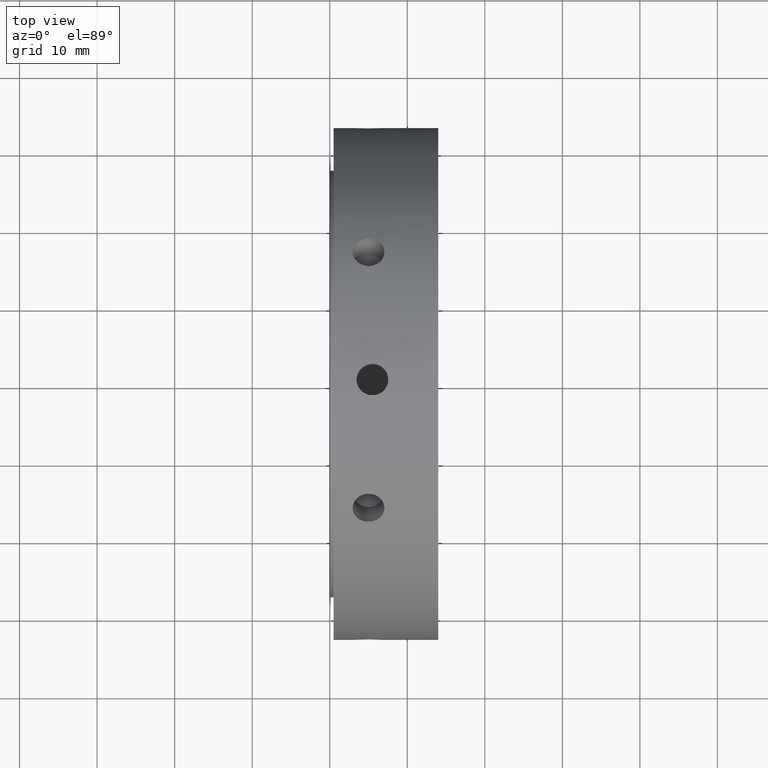
[diagram: clean part render]
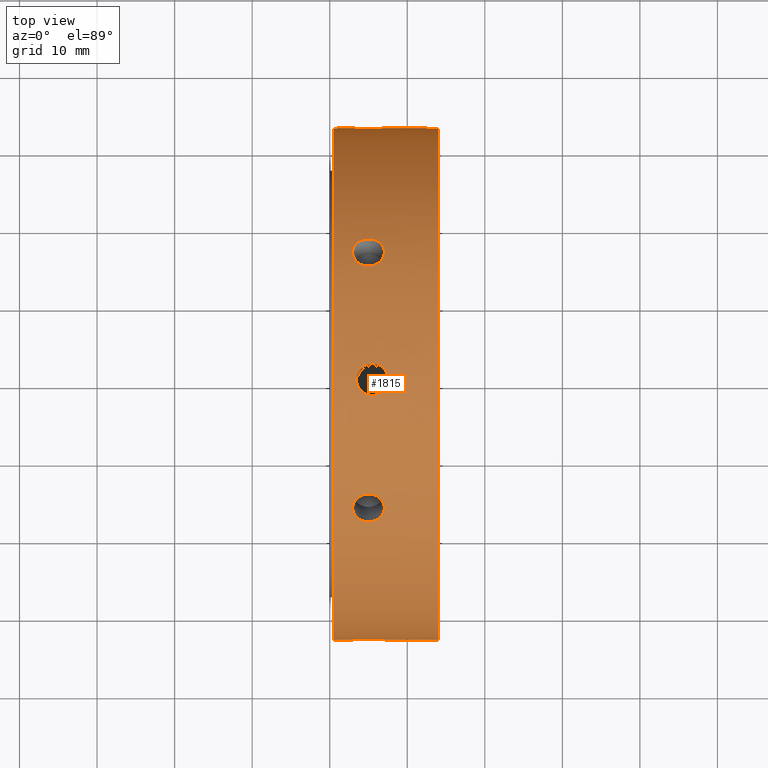
[diagram: same view with one face highlighted and labeled with its STEP entity id]
A machine part, top view. The second image highlights one B-rep face of the part: STEP entity #1815.
In plain terms, the highlighted cylindrical surface (bore or boss wall) has radius 33 mm, axis along (1, 0, 0).
Its self-contained STEP definition (entity closure, byte-faithful):
#534=CARTESIAN_POINT('',(2.949999999999995,16.500000000000025,28.578838324886458));
#535=VERTEX_POINT('',#534);
#536=CARTESIAN_POINT('',(7.049999999999994,16.500000000000025,28.578838324886458));
#537=VERTEX_POINT('',#536);
#538=CARTESIAN_POINT('',(2.949999999999995,16.500000000000021,28.578838324886458));
#539=CARTESIAN_POINT('',(2.949999999999995,16.722978702038088,28.450101511241229));
#540=CARTESIAN_POINT('',(3.001469730550207,16.959119575912077,28.309928827328811));
#541=CARTESIAN_POINT('',(3.210700403785936,17.390507037734277,28.046997557127945));
#542=CARTESIAN_POINT('',(3.368457679643568,17.585844216465336,27.924384711892365));
#543=CARTESIAN_POINT('',(3.732404609203521,17.893030353639261,27.728552849738524));
#544=CARTESIAN_POINT('',(3.962877949748982,18.025389885955832,27.642291872783559));
#545=CARTESIAN_POINT('',(4.467935952420571,18.200574987794123,27.527260137050931));
#546=CARTESIAN_POINT('',(4.742526242946584,18.243484181916145,27.498641510157835));
#547=CARTESIAN_POINT('',(5.257473757053406,18.243484181916145,27.498641510157835));
#548=CARTESIAN_POINT('',(5.532064047579422,18.200574987794123,27.527260137050938));
#549=CARTESIAN_POINT('',(6.037122050251011,18.025389885955835,27.642291872783566));
#550=CARTESIAN_POINT('',(6.267595390796467,17.893030353639261,27.72855284973852));
#551=CARTESIAN_POINT('',(6.63154232035642,17.585844216465336,27.924384711892365));
#552=CARTESIAN_POINT('',(6.789299596214051,17.390507037734281,28.046997557127938));
#553=CARTESIAN_POINT('',(6.99853026944978,16.95911957591208,28.309928827328807));
#554=CARTESIAN_POINT('',(7.049999999999994,16.722978702038091,28.450101511241229));
#555=CARTESIAN_POINT('',(7.049999999999994,16.500000000000025,28.578838324886458));
#556=B_SPLINE_CURVE_WITH_KNOTS('',3,(#538,#539,#540,#541,#542,#543,#544,#545,#546,#547,#548,#549,#550,#551,#552,#553,#554,#555),.UNSPECIFIED.,.F.,.U.,(4,2,2,2,2,2,2,2,4),(0.308968430606325,0.386210518793464,0.463452606980604,0.540694734096627,0.61793686121265,0.695178988328674,0.772421115444697,0.849663203631836,0.926905291818976),.UNSPECIFIED.);
#557=EDGE_CURVE('',#535,#537,#556,.T.);
#559=CARTESIAN_POINT('',(7.049999999999994,16.500000000000021,28.578838324886462));
#560=CARTESIAN_POINT('',(7.049999999999994,16.277021297961955,28.707575138531691));
#561=CARTESIAN_POINT('',(6.998530269449782,16.037557755840165,28.841992792222214));
#562=CARTESIAN_POINT('',(6.78929959621405,15.594158865485799,29.084119657933897));
#563=CARTESIAN_POINT('',(6.631542320356422,15.390304437315972,29.191980194400781));
#564=CARTESIAN_POINT('',(6.267595390796466,15.067116001233368,29.36009526180689));
#565=CARTESIAN_POINT('',(6.037122050251007,14.926232037676826,29.431591490748588));
#566=CARTESIAN_POINT('',(5.532064047579421,14.73901908137181,29.525790371438795));
#567=CARTESIAN_POINT('',(5.257473757053405,14.692780026399944,29.548641510157836));
#568=CARTESIAN_POINT('',(4.999999999999995,14.692780026399944,29.548641510157836));
#569=CARTESIAN_POINT('',(4.742526242946584,14.692780026399944,29.548641510157836));
#570=CARTESIAN_POINT('',(4.467935952420571,14.73901908137181,29.525790371438802));
#571=CARTESIAN_POINT('',(3.962877949748983,14.926232037676826,29.431591490748591));
#572=CARTESIAN_POINT('',(3.732404609203521,15.067116001233368,29.36009526180689));
#573=CARTESIAN_POINT('',(3.368457679643568,15.390304437315972,29.191980194400781));
#574=CARTESIAN_POINT('',(3.210700403785938,15.594158865485799,29.08411965793389));
#575=CARTESIAN_POINT('',(3.001469730550207,16.037557755840165,28.841992792222207));
#576=CARTESIAN_POINT('',(2.949999999999995,16.277021297961959,28.707575138531688));
#577=CARTESIAN_POINT('',(2.949999999999995,16.500000000000025,28.578838324886458));
#578=B_SPLINE_CURVE_WITH_KNOTS('',3,(#559,#560,#561,#562,#563,#564,#565,#566,#567,#568,#569,#570,#571,#572,#573,#574,#575,#576,#577),.UNSPECIFIED.,.F.,.U.,(4,2,2,2,3,2,2,2,4),(0.926905291818976,1.004147380006115,1.081389468193254,1.158631595309278,1.235873722425301,1.313115849541324,1.390357976657347,1.467600064844487,1.544842153031626),.UNSPECIFIED.);
#579=EDGE_CURVE('',#537,#535,#578,.T.);
#646=CARTESIAN_POINT('',(2.949999999999995,32.999999999999993,-2.198242E-014));
#647=VERTEX_POINT('',#646);
#648=CARTESIAN_POINT('',(7.049999999999994,32.999999999999993,-1.332268E-014));
#649=VERTEX_POINT('',#648);
#650=CARTESIAN_POINT('',(2.949999999999995,33.0,-1.443290E-014));
#651=CARTESIAN_POINT('',(2.949999999999995,33.0,-0.257473627290479));
#652=CARTESIAN_POINT('',(3.001469730550208,32.996677331752188,-0.532063964893418));
#653=CARTESIAN_POINT('',(3.210700403785938,32.984665903220026,-1.037122100805969));
#654=CARTESIAN_POINT('',(3.368457679643568,32.976148653781252,-1.267595482508432));
#655=CARTESIAN_POINT('',(3.732404609203521,32.960146354872577,-1.631542412068386));
#656=CARTESIAN_POINT('',(3.962877949748983,32.951621923632615,-1.789299617965041));
#657=CARTESIAN_POINT('',(4.467935952420571,32.939594069165878,-1.998530234387874));
#658=CARTESIAN_POINT('',(4.742526242946584,32.936264208316032,-2.050000000000015));
#659=CARTESIAN_POINT('',(5.257473757053406,32.936264208316032,-2.050000000000015));
#660=CARTESIAN_POINT('',(5.532064047579421,32.939594069165878,-1.998530234387874));
#661=CARTESIAN_POINT('',(6.037122050251006,32.951621923632615,-1.789299617965042));
#662=CARTESIAN_POINT('',(6.267595390796467,32.960146354872577,-1.631542412068386));
#663=CARTESIAN_POINT('',(6.63154232035642,32.976148653781252,-1.267595482508432));
#664=CARTESIAN_POINT('',(6.78929959621405,32.984665903220026,-1.03712210080597));
#665=CARTESIAN_POINT('',(6.998530269449782,32.996677331752188,-0.532063964893418));
#666=CARTESIAN_POINT('',(7.049999999999994,33.0,-0.25747362729048));
#667=CARTESIAN_POINT('',(7.049999999999994,33.0,-1.512679E-014));
#668=B_SPLINE_CURVE_WITH_KNOTS('',3,(#650,#651,#652,#653,#654,#655,#656,#657,#658,#659,#660,#661,#662,#663,#664,#665,#666,#667),.UNSPECIFIED.,.F.,.U.,(4,2,2,2,2,2,2,2,4),(0.308968430606325,0.386210518793465,0.463452606980604,0.540694734096627,0.61793686121265,0.695178988328674,0.772421115444697,0.849663203631836,0.926905291818976),.UNSPECIFIED.);
#669=EDGE_CURVE('',#647,#649,#668,.T.);
#671=CARTESIAN_POINT('',(7.049999999999994,33.0,-1.477984E-014));
#672=CARTESIAN_POINT('',(7.049999999999994,33.0,0.25747362729045));
#673=CARTESIAN_POINT('',(6.998530269449782,32.996677331752188,0.532063964893388));
#674=CARTESIAN_POINT('',(6.789299596214051,32.984665903220026,1.03712210080594));
#675=CARTESIAN_POINT('',(6.631542320356422,32.976148653781252,1.267595482508402));
#676=CARTESIAN_POINT('',(6.267595390796467,32.960146354872577,1.631542412068356));
#677=CARTESIAN_POINT('',(6.037122050251005,32.951621923632615,1.789299617965013));
#678=CARTESIAN_POINT('',(5.532064047579417,32.939594069165878,1.998530234387845));
#679=CARTESIAN_POINT('',(5.257473757053405,32.93626420831604,2.049999999999985));
#680=CARTESIAN_POINT('',(4.999999999999995,32.93626420831604,2.049999999999985));
#681=CARTESIAN_POINT('',(4.742526242946584,32.93626420831604,2.049999999999985));
#682=CARTESIAN_POINT('',(4.46793595242057,32.939594069165878,1.998530234387845));
#683=CARTESIAN_POINT('',(3.962877949748983,32.951621923632615,1.789299617965012));
#684=CARTESIAN_POINT('',(3.732404609203521,32.960146354872577,1.631542412068357));
#685=CARTESIAN_POINT('',(3.368457679643568,32.976148653781252,1.267595482508403));
#686=CARTESIAN_POINT('',(3.210700403785939,32.984665903220026,1.03712210080594));
#687=CARTESIAN_POINT('',(3.001469730550208,32.996677331752188,0.532063964893389));
#688=CARTESIAN_POINT('',(2.949999999999995,33.0,0.25747362729045));
#689=CARTESIAN_POINT('',(2.949999999999995,33.0,-1.443290E-014));
#690=B_SPLINE_CURVE_WITH_KNOTS('',3,(#671,#672,#673,#674,#675,#676,#677,#678,#679,#680,#681,#682,#683,#684,#685,#686,#687,#688,#689),.UNSPECIFIED.,.F.,.U.,(4,2,2,2,3,2,2,2,4),(0.926905291818976,1.004147380006115,1.081389468193254,1.158631595309278,1.235873722425301,1.313115849541324,1.390357976657347,1.467600064844487,1.544842153031626),.UNSPECIFIED.);
#691=EDGE_CURVE('',#649,#647,#690,.T.);
#758=CARTESIAN_POINT('',(2.949999999999995,16.499999999999989,-28.578838324886476));
#759=VERTEX_POINT('',#758);
#760=CARTESIAN_POINT('',(7.049999999999994,16.499999999999993,-28.578838324886469));
#761=VERTEX_POINT('',#760);
#762=CARTESIAN_POINT('',(2.949999999999994,16.499999999999996,-28.578838324886476));
#763=CARTESIAN_POINT('',(2.949999999999994,16.277021297961927,-28.707575138531709));
#764=CARTESIAN_POINT('',(3.001469730550208,16.037557755840133,-28.841992792222225));
#765=CARTESIAN_POINT('',(3.210700403785938,15.59415886548577,-29.084119657933908));
#766=CARTESIAN_POINT('',(3.368457679643568,15.390304437315944,-29.191980194400795));
#767=CARTESIAN_POINT('',(3.732404609203521,15.067116001233337,-29.360095261806904));
#768=CARTESIAN_POINT('',(3.962877949748983,14.926232037676801,-29.431591490748605));
#769=CARTESIAN_POINT('',(4.467935952420571,14.739019081371785,-29.525790371438813));
#770=CARTESIAN_POINT('',(4.742526242946584,14.692780026399916,-29.54864151015785));
#771=CARTESIAN_POINT('',(5.257473757053405,14.692780026399916,-29.54864151015785));
#772=CARTESIAN_POINT('',(5.532064047579418,14.739019081371785,-29.525790371438809));
#773=CARTESIAN_POINT('',(6.037122050251005,14.926232037676799,-29.431591490748605));
#774=CARTESIAN_POINT('',(6.267595390796466,15.067116001233337,-29.360095261806904));
#775=CARTESIAN_POINT('',(6.63154232035642,15.390304437315944,-29.191980194400795));
#776=CARTESIAN_POINT('',(6.789299596214051,15.59415886548577,-29.084119657933904));
#777=CARTESIAN_POINT('',(6.998530269449782,16.037557755840133,-28.841992792222221));
#778=CARTESIAN_POINT('',(7.049999999999995,16.277021297961923,-28.707575138531709));
#779=CARTESIAN_POINT('',(7.049999999999995,16.499999999999993,-28.578838324886476));
#780=B_SPLINE_CURVE_WITH_KNOTS('',3,(#762,#763,#764,#765,#766,#767,#768,#769,#770,#771,#772,#773,#774,#775,#776,#777,#778,#779),.UNSPECIFIED.,.F.,.U.,(4,2,2,2,2,2,2,2,4),(0.308968430606325,0.386210518793465,0.463452606980604,0.540694734096627,0.61793686121265,0.695178988328673,0.772421115444697,0.849663203631836,0.926905291818975),.UNSPECIFIED.);
#781=EDGE_CURVE('',#759,#761,#780,.T.);
#783=CARTESIAN_POINT('',(7.049999999999994,16.499999999999996,-28.578838324886476));
#784=CARTESIAN_POINT('',(7.049999999999994,16.722978702038066,-28.450101511241243));
#785=CARTESIAN_POINT('',(6.99853026944978,16.959119575912048,-28.309928827328825));
#786=CARTESIAN_POINT('',(6.789299596214052,17.390507037734253,-28.046997557127959));
#787=CARTESIAN_POINT('',(6.631542320356422,17.585844216465311,-27.924384711892376));
#788=CARTESIAN_POINT('',(6.267595390796466,17.893030353639237,-27.728552849738534));
#789=CARTESIAN_POINT('',(6.037122050251004,18.025389885955807,-27.642291872783581));
#790=CARTESIAN_POINT('',(5.532064047579417,18.200574987794095,-27.527260137050952));
#791=CARTESIAN_POINT('',(5.257473757053405,18.243484181916116,-27.498641510157849));
#792=CARTESIAN_POINT('',(4.999999999999995,18.243484181916116,-27.498641510157849));
#793=CARTESIAN_POINT('',(4.742526242946584,18.243484181916116,-27.498641510157849));
#794=CARTESIAN_POINT('',(4.467935952420572,18.200574987794095,-27.527260137050952));
#795=CARTESIAN_POINT('',(3.962877949748985,18.025389885955807,-27.642291872783581));
#796=CARTESIAN_POINT('',(3.732404609203522,17.893030353639237,-27.728552849738534));
#797=CARTESIAN_POINT('',(3.368457679643568,17.585844216465311,-27.924384711892376));
#798=CARTESIAN_POINT('',(3.210700403785938,17.390507037734253,-28.046997557127959));
#799=CARTESIAN_POINT('',(3.001469730550209,16.959119575912048,-28.309928827328825));
#800=CARTESIAN_POINT('',(2.949999999999995,16.722978702038066,-28.450101511241243));
#801=CARTESIAN_POINT('',(2.949999999999995,16.5,-28.578838324886476));
#802=B_SPLINE_CURVE_WITH_KNOTS('',3,(#783,#784,#785,#786,#787,#788,#789,#790,#791,#792,#793,#794,#795,#796,#797,#798,#799,#800,#801),.UNSPECIFIED.,.F.,.U.,(4,2,2,2,3,2,2,2,4),(0.926905291818975,1.004147380006115,1.081389468193254,1.158631595309278,1.235873722425301,1.313115849541324,1.390357976657347,1.467600064844487,1.544842153031626),.UNSPECIFIED.);
#803=EDGE_CURVE('',#761,#759,#802,.T.);
#870=CARTESIAN_POINT('',(2.949999999999995,-16.500000000000011,-28.578838324886465));
#871=VERTEX_POINT('',#870);
#872=CARTESIAN_POINT('',(7.049999999999994,-16.500000000000007,-28.578838324886469));
#873=VERTEX_POINT('',#872);
#874=CARTESIAN_POINT('',(2.949999999999994,-16.500000000000004,-28.578838324886465));
#875=CARTESIAN_POINT('',(2.949999999999994,-16.72297870203807,-28.450101511241233));
#876=CARTESIAN_POINT('',(3.001469730550208,-16.959119575912059,-28.309928827328818));
#877=CARTESIAN_POINT('',(3.210700403785937,-17.390507037734256,-28.046997557127948));
#878=CARTESIAN_POINT('',(3.368457679643568,-17.585844216465315,-27.924384711892376));
#879=CARTESIAN_POINT('',(3.732404609203521,-17.89303035363924,-27.728552849738527));
#880=CARTESIAN_POINT('',(3.962877949748981,-18.025389885955814,-27.642291872783581));
#881=CARTESIAN_POINT('',(4.467935952420571,-18.200574987794102,-27.527260137050952));
#882=CARTESIAN_POINT('',(4.742526242946584,-18.243484181916124,-27.498641510157846));
#883=CARTESIAN_POINT('',(5.257473757053406,-18.243484181916124,-27.498641510157846));
#884=CARTESIAN_POINT('',(5.532064047579421,-18.200574987794102,-27.527260137050952));
#885=CARTESIAN_POINT('',(6.037122050251009,-18.025389885955814,-27.642291872783581));
#886=CARTESIAN_POINT('',(6.267595390796467,-17.89303035363924,-27.728552849738527));
#887=CARTESIAN_POINT('',(6.63154232035642,-17.585844216465315,-27.924384711892376));
#888=CARTESIAN_POINT('',(6.789299596214051,-17.390507037734263,-28.046997557127948));
#889=CARTESIAN_POINT('',(6.99853026944978,-16.959119575912062,-28.309928827328818));
#890=CARTESIAN_POINT('',(7.049999999999995,-16.72297870203807,-28.450101511241233));
#891=CARTESIAN_POINT('',(7.049999999999995,-16.500000000000004,-28.578838324886465));
#892=B_SPLINE_CURVE_WITH_KNOTS('',3,(#874,#875,#876,#877,#878,#879,#880,#881,#882,#883,#884,#885,#886,#887,#888,#889,#890,#891),.UNSPECIFIED.,.F.,.U.,(4,2,2,2,2,2,2,2,4),(0.308968430606325,0.386210518793464,0.463452606980604,0.540694734096627,0.61793686121265,0.695178988328673,0.772421115444697,0.849663203631836,0.926905291818975),.UNSPECIFIED.);
#893=EDGE_CURVE('',#871,#873,#892,.T.);
#895=CARTESIAN_POINT('',(7.049999999999994,-16.500000000000004,-28.578838324886469));
#896=CARTESIAN_POINT('',(7.049999999999994,-16.277021297961937,-28.707575138531706));
#897=CARTESIAN_POINT('',(6.998530269449782,-16.037557755840144,-28.841992792222225));
#898=CARTESIAN_POINT('',(6.789299596214052,-15.594158865485781,-29.084119657933908));
#899=CARTESIAN_POINT('',(6.631542320356423,-15.390304437315955,-29.191980194400784));
#900=CARTESIAN_POINT('',(6.26759539079647,-15.067116001233348,-29.360095261806897));
#901=CARTESIAN_POINT('',(6.037122050251012,-14.926232037676808,-29.431591490748595));
#902=CARTESIAN_POINT('',(5.532064047579423,-14.739019081371792,-29.525790371438809));
#903=CARTESIAN_POINT('',(5.257473757053406,-14.692780026399927,-29.548641510157843));
#904=CARTESIAN_POINT('',(4.999999999999995,-14.692780026399927,-29.548641510157843));
#905=CARTESIAN_POINT('',(4.742526242946584,-14.692780026399927,-29.548641510157843));
#906=CARTESIAN_POINT('',(4.467935952420569,-14.739019081371792,-29.525790371438809));
#907=CARTESIAN_POINT('',(3.962877949748981,-14.926232037676808,-29.431591490748595));
#908=CARTESIAN_POINT('',(3.73240460920352,-15.067116001233348,-29.360095261806897));
#909=CARTESIAN_POINT('',(3.368457679643568,-15.390304437315955,-29.191980194400784));
#910=CARTESIAN_POINT('',(3.210700403785938,-15.594158865485781,-29.084119657933908));
#911=CARTESIAN_POINT('',(3.001469730550208,-16.037557755840147,-28.841992792222225));
#912=CARTESIAN_POINT('',(2.949999999999994,-16.277021297961937,-28.707575138531706));
#913=CARTESIAN_POINT('',(2.949999999999994,-16.500000000000004,-28.578838324886469));
#914=B_SPLINE_CURVE_WITH_KNOTS('',3,(#895,#896,#897,#898,#899,#900,#901,#902,#903,#904,#905,#906,#907,#908,#909,#910,#911,#912,#913),.UNSPECIFIED.,.F.,.U.,(4,2,2,2,3,2,2,2,4),(0.926905291818975,1.004147380006115,1.081389468193254,1.158631595309277,1.2358737224253,1.313115849541324,1.390357976657347,1.467600064844486,1.544842153031625),.UNSPECIFIED.);
#915=EDGE_CURVE('',#873,#871,#914,.T.);
#982=CARTESIAN_POINT('',(2.949999999999995,-33.0,9.159340E-015));
#983=VERTEX_POINT('',#982);
#984=CARTESIAN_POINT('',(7.049999999999994,-33.0,2.220446E-015));
#985=VERTEX_POINT('',#984);
#986=CARTESIAN_POINT('',(2.949999999999995,-33.0,2.636780E-015));
#987=CARTESIAN_POINT('',(2.949999999999995,-33.0,0.257473627290467));
#988=CARTESIAN_POINT('',(3.001469730550207,-32.996677331752188,0.532063964893406));
#989=CARTESIAN_POINT('',(3.210700403785938,-32.984665903220026,1.037122100805958));
#990=CARTESIAN_POINT('',(3.368457679643568,-32.976148653781252,1.26759548250842));
#991=CARTESIAN_POINT('',(3.732404609203521,-32.960146354872577,1.631542412068374));
#992=CARTESIAN_POINT('',(3.962877949748983,-32.951621923632615,1.78929961796503));
#993=CARTESIAN_POINT('',(4.467935952420571,-32.939594069165878,1.998530234387862));
#994=CARTESIAN_POINT('',(4.742526242946584,-32.936264208316032,2.050000000000003));
#995=CARTESIAN_POINT('',(5.257473757053406,-32.936264208316032,2.050000000000003));
#996=CARTESIAN_POINT('',(5.53206404757942,-32.939594069165878,1.998530234387863));
#997=CARTESIAN_POINT('',(6.037122050251006,-32.951621923632615,1.78929961796503));
#998=CARTESIAN_POINT('',(6.267595390796467,-32.960146354872577,1.631542412068374));
#999=CARTESIAN_POINT('',(6.63154232035642,-32.976148653781252,1.267595482508421));
#1000=CARTESIAN_POINT('',(6.78929959621405,-32.984665903220026,1.037122100805958));
#1001=CARTESIAN_POINT('',(6.998530269449782,-32.996677331752188,0.532063964893406));
#1002=CARTESIAN_POINT('',(7.049999999999994,-33.0,0.257473627290468));
#1003=CARTESIAN_POINT('',(7.049999999999994,-33.0,3.261280E-015));
#1004=B_SPLINE_CURVE_WITH_KNOTS('',3,(#986,#987,#988,#989,#990,#991,#992,#993,#994,#995,#996,#997,#998,#999,#1000,#1001,#1002,#1003),.UNSPECIFIED.,.F.,.U.,(4,2,2,2,2,2,2,2,4),(0.308968430606325,0.386210518793465,0.463452606980604,0.540694734096627,0.61793686121265,0.695178988328674,0.772421115444697,0.849663203631836,0.926905291818976),.UNSPECIFIED.);
#1005=EDGE_CURVE('',#983,#985,#1004,.T.);
#1007=CARTESIAN_POINT('',(7.049999999999994,-33.0,2.983724E-015));
#1008=CARTESIAN_POINT('',(7.049999999999994,-33.0,-0.257473627290462));
#1009=CARTESIAN_POINT('',(6.998530269449782,-32.996677331752188,-0.5320639648934));
#1010=CARTESIAN_POINT('',(6.789299596214051,-32.984665903220026,-1.037122100805952));
#1011=CARTESIAN_POINT('',(6.631542320356422,-32.976148653781252,-1.267595482508414));
#1012=CARTESIAN_POINT('',(6.267595390796467,-32.960146354872577,-1.631542412068369));
#1013=CARTESIAN_POINT('',(6.037122050251005,-32.951621923632615,-1.789299617965025));
#1014=CARTESIAN_POINT('',(5.532064047579417,-32.939594069165878,-1.998530234387858));
#1015=CARTESIAN_POINT('',(5.257473757053405,-32.936264208316032,-2.049999999999997));
#1016=CARTESIAN_POINT('',(4.999999999999995,-32.936264208316032,-2.049999999999997));
#1017=CARTESIAN_POINT('',(4.742526242946584,-32.936264208316032,-2.049999999999997));
#1018=CARTESIAN_POINT('',(4.46793595242057,-32.939594069165885,-1.998530234387857));
#1019=CARTESIAN_POINT('',(3.962877949748983,-32.951621923632615,-1.789299617965024));
#1020=CARTESIAN_POINT('',(3.732404609203521,-32.960146354872577,-1.631542412068369));
#1021=CARTESIAN_POINT('',(3.368457679643568,-32.976148653781252,-1.267595482508415));
#1022=CARTESIAN_POINT('',(3.210700403785939,-32.984665903220026,-1.037122100805952));
#1023=CARTESIAN_POINT('',(3.001469730550208,-32.996677331752188,-0.532063964893401));
#1024=CARTESIAN_POINT('',(2.949999999999995,-33.0,-0.257473627290462));
#1025=CARTESIAN_POINT('',(2.949999999999995,-33.0,2.567391E-015));
#1026=B_SPLINE_CURVE_WITH_KNOTS('',3,(#1007,#1008,#1009,#1010,#1011,#1012,#1013,#1014,#1015,#1016,#1017,#1018,#1019,#1020,#1021,#1022,#1023,#1024,#1025),.UNSPECIFIED.,.F.,.U.,(4,2,2,2,3,2,2,2,4),(0.926905291818976,1.004147380006115,1.081389468193254,1.158631595309278,1.235873722425301,1.313115849541324,1.390357976657347,1.467600064844487,1.544842153031626),.UNSPECIFIED.);
#1027=EDGE_CURVE('',#985,#983,#1026,.T.);
#1131=CARTESIAN_POINT('',(2.949999999999995,-16.499999999999993,28.578838324886476));
#1132=VERTEX_POINT('',#1131);
#1133=CARTESIAN_POINT('',(7.049999999999994,-16.5,28.578838324886469));
#1134=VERTEX_POINT('',#1133);
#1135=CARTESIAN_POINT('',(2.949999999999995,-16.5,28.578838324886476));
#1136=CARTESIAN_POINT('',(2.949999999999995,-16.277021297961934,28.707575138531706));
#1137=CARTESIAN_POINT('',(3.001469730550207,-16.03755775584014,28.841992792222225));
#1138=CARTESIAN_POINT('',(3.210700403785938,-15.594158865485772,29.084119657933908));
#1139=CARTESIAN_POINT('',(3.368457679643568,-15.390304437315944,29.191980194400792));
#1140=CARTESIAN_POINT('',(3.732404609203521,-15.067116001233337,29.360095261806901));
#1141=CARTESIAN_POINT('',(3.962877949748983,-14.926232037676801,29.431591490748605));
#1142=CARTESIAN_POINT('',(4.467935952420571,-14.739019081371785,29.525790371438809));
#1143=CARTESIAN_POINT('',(4.742526242946584,-14.69278002639992,29.548641510157843));
#1144=CARTESIAN_POINT('',(5.257473757053406,-14.69278002639992,29.548641510157843));
#1145=CARTESIAN_POINT('',(5.532064047579421,-14.739019081371785,29.525790371438809));
#1146=CARTESIAN_POINT('',(6.037122050251006,-14.926232037676801,29.431591490748605));
#1147=CARTESIAN_POINT('',(6.267595390796467,-15.067116001233337,29.360095261806901));
#1148=CARTESIAN_POINT('',(6.631542320356423,-15.390304437315944,29.191980194400792));
#1149=CARTESIAN_POINT('',(6.789299596214051,-15.594158865485772,29.084119657933908));
#1150=CARTESIAN_POINT('',(6.99853026944978,-16.03755775584014,28.841992792222225));
#1151=CARTESIAN_POINT('',(7.049999999999994,-16.277021297961934,28.707575138531706));
#1152=CARTESIAN_POINT('',(7.049999999999994,-16.5,28.578838324886476));
#1153=B_SPLINE_CURVE_WITH_KNOTS('',3,(#1135,#1136,#1137,#1138,#1139,#1140,#1141,#1142,#1143,#1144,#1145,#1146,#1147,#1148,#1149,#1150,#1151,#1152),.UNSPECIFIED.,.F.,.U.,(4,2,2,2,2,2,2,2,4),(0.308968430606325,0.386210518793465,0.463452606980604,0.540694734096627,0.61793686121265,0.695178988328674,0.772421115444697,0.849663203631836,0.926905291818976),.UNSPECIFIED.);
#1154=EDGE_CURVE('',#1132,#1134,#1153,.T.);
#1156=CARTESIAN_POINT('',(7.049999999999994,-16.5,28.578838324886469));
#1157=CARTESIAN_POINT('',(7.049999999999994,-16.722978702038066,28.450101511241243));
#1158=CARTESIAN_POINT('',(6.998530269449782,-16.959119575912055,28.309928827328825));
#1159=CARTESIAN_POINT('',(6.789299596214052,-17.390507037734256,28.046997557127959));
#1160=CARTESIAN_POINT('',(6.63154232035642,-17.585844216465311,27.924384711892376));
#1161=CARTESIAN_POINT('',(6.267595390796467,-17.893030353639237,27.728552849738527));
#1162=CARTESIAN_POINT('',(6.037122050251005,-18.025389885955811,27.642291872783574));
#1163=CARTESIAN_POINT('',(5.532064047579414,-18.200574987794099,27.527260137050948));
#1164=CARTESIAN_POINT('',(5.257473757053405,-18.243484181916116,27.498641510157849));
#1165=CARTESIAN_POINT('',(4.999999999999995,-18.243484181916116,27.498641510157849));
#1166=CARTESIAN_POINT('',(4.742526242946584,-18.243484181916116,27.498641510157849));
#1167=CARTESIAN_POINT('',(4.467935952420572,-18.200574987794095,27.527260137050952));
#1168=CARTESIAN_POINT('',(3.962877949748984,-18.025389885955807,27.642291872783581));
#1169=CARTESIAN_POINT('',(3.732404609203521,-17.893030353639237,27.728552849738527));
#1170=CARTESIAN_POINT('',(3.368457679643568,-17.585844216465311,27.924384711892376));
#1171=CARTESIAN_POINT('',(3.210700403785938,-17.390507037734256,28.046997557127959));
#1172=CARTESIAN_POINT('',(3.001469730550208,-16.959119575912055,28.309928827328825));
#1173=CARTESIAN_POINT('',(2.949999999999995,-16.722978702038066,28.450101511241243));
#1174=CARTESIAN_POINT('',(2.949999999999995,-16.5,28.578838324886469));
#1175=B_SPLINE_CURVE_WITH_KNOTS('',3,(#1156,#1157,#1158,#1159,#1160,#1161,#1162,#1163,#1164,#1165,#1166,#1167,#1168,#1169,#1170,#1171,#1172,#1173,#1174),.UNSPECIFIED.,.F.,.U.,(4,2,2,2,3,2,2,2,4),(0.926905291818976,1.004147380006115,1.081389468193254,1.158631595309278,1.235873722425301,1.313115849541324,1.390357976657347,1.467600064844487,1.544842153031626),.UNSPECIFIED.);
#1176=EDGE_CURVE('',#1134,#1132,#1175,.T.);
#1255=CARTESIAN_POINT('',(5.499999999999994,29.548641510157843,-14.692780026399934));
#1256=VERTEX_POINT('',#1255);
#1257=CARTESIAN_POINT('',(5.499999999999994,29.548641510157839,-14.69278002639993));
#1258=CARTESIAN_POINT('',(5.242526242946584,29.548641510157839,-14.69278002639993));
#1259=CARTESIAN_POINT('',(4.967935952420573,29.525790371438806,-14.739019081371795));
#1260=CARTESIAN_POINT('',(4.462877949748985,29.431591490748602,-14.926232037676808));
#1261=CARTESIAN_POINT('',(4.232404609203522,29.360095261806887,-15.067116001233344));
#1262=CARTESIAN_POINT('',(3.868457679643568,29.191980194400777,-15.390304437315949));
#1263=CARTESIAN_POINT('',(3.710700403785939,29.084119657933904,-15.594158865485783));
#1264=CARTESIAN_POINT('',(3.501469730550208,28.841992792222221,-16.037557755840147));
#1265=CARTESIAN_POINT('',(3.449999999999994,28.707575138531702,-16.277021297961941));
#1266=CARTESIAN_POINT('',(3.449999999999994,28.450101511241233,-16.722978702038077));
#1267=CARTESIAN_POINT('',(3.501469730550206,28.309928827328818,-16.959119575912066));
#1268=CARTESIAN_POINT('',(3.710700403785936,28.046997557127948,-17.390507037734267));
#1269=CARTESIAN_POINT('',(3.868457679643568,27.924384711892365,-17.585844216465322));
#1270=CARTESIAN_POINT('',(4.232404609203522,27.728552849738524,-17.893030353639251));
#1271=CARTESIAN_POINT('',(4.462877949748982,27.64229187278357,-18.025389885955825));
#1272=CARTESIAN_POINT('',(4.96793595242057,27.527260137050945,-18.200574987794109));
#1273=CARTESIAN_POINT('',(5.242526242946584,27.498641510157835,-18.243484181916127));
#1274=CARTESIAN_POINT('',(5.757473757053404,27.498641510157835,-18.243484181916127));
#1275=CARTESIAN_POINT('',(6.032064047579418,27.527260137050945,-18.200574987794109));
#1276=CARTESIAN_POINT('',(6.537122050251005,27.64229187278357,-18.025389885955825));
#1277=CARTESIAN_POINT('',(6.767595390796465,27.728552849738524,-17.893030353639251));
#1278=CARTESIAN_POINT('',(7.13154232035642,27.924384711892365,-17.585844216465322));
#1279=CARTESIAN_POINT('',(7.28929959621405,28.046997557127948,-17.390507037734267));
#1280=CARTESIAN_POINT('',(7.498530269449782,28.309928827328818,-16.959119575912066));
#1281=CARTESIAN_POINT('',(7.549999999999994,28.450101511241233,-16.722978702038077));
#1282=CARTESIAN_POINT('',(7.549999999999994,28.707575138531702,-16.277021297961941));
#1283=CARTESIAN_POINT('',(7.498530269449779,28.841992792222221,-16.037557755840147));
#1284=CARTESIAN_POINT('',(7.289299596214049,29.084119657933904,-15.594158865485783));
#1285=CARTESIAN_POINT('',(7.13154232035642,29.191980194400777,-15.390304437315949));
#1286=CARTESIAN_POINT('',(6.767595390796465,29.360095261806887,-15.067116001233344));
#1287=CARTESIAN_POINT('',(6.537122050251005,29.431591490748602,-14.926232037676812));
#1288=CARTESIAN_POINT('',(6.032064047579418,29.525790371438809,-14.739019081371797));
#1289=CARTESIAN_POINT('',(5.757473757053404,29.548641510157839,-14.692780026399932));
#1290=CARTESIAN_POINT('',(5.499999999999994,29.548641510157839,-14.692780026399932));
#1291=B_SPLINE_CURVE_WITH_KNOTS('',3,(#1257,#1258,#1259,#1260,#1261,#1262,#1263,#1264,#1265,#1266,#1267,#1268,#1269,#1270,#1271,#1272,#1273,#1274,#1275,#1276,#1277,#1278,#1279,#1280,#1281,#1282,#1283,#1284,#1285,#1286,#1287,#1288,#1289,#1290),.UNSPECIFIED.,.T.,.U.,(4,2,2,2,2,2,2,2,2,2,2,2,2,2,2,2,4),(0.0,0.077242127116023,0.154484254232046,0.231726342419186,0.308968430606325,0.386210518793465,0.463452606980604,0.540694734096627,0.617936861212651,0.695178988328674,0.772421115444697,0.849663203631836,0.926905291818976,1.004147380006115,1.081389468193255,1.158631595309278,1.235873722425301),.UNSPECIFIED.);
#1292=EDGE_CURVE('',#1256,#1256,#1291,.T.);
#1412=CARTESIAN_POINT('',(5.499999999999994,-27.498641510157853,-18.243484181916113));
#1413=VERTEX_POINT('',#1412);
#1414=CARTESIAN_POINT('',(5.499999999999994,-27.498641510157849,-18.243484181916109));
#1415=CARTESIAN_POINT('',(5.242526242946584,-27.498641510157849,-18.243484181916109));
#1416=CARTESIAN_POINT('',(4.967935952420571,-27.527260137050963,-18.200574987794088));
#1417=CARTESIAN_POINT('',(4.462877949748984,-27.642291872783588,-18.025389885955803));
#1418=CARTESIAN_POINT('',(4.232404609203521,-27.728552849738534,-17.893030353639229));
#1419=CARTESIAN_POINT('',(3.868457679643566,-27.924384711892376,-17.585844216465304));
#1420=CARTESIAN_POINT('',(3.710700403785938,-28.046997557127959,-17.390507037734249));
#1421=CARTESIAN_POINT('',(3.501469730550207,-28.309928827328825,-16.959119575912048));
#1422=CARTESIAN_POINT('',(3.449999999999995,-28.45010151124125,-16.722978702038063));
#1423=CARTESIAN_POINT('',(3.449999999999994,-28.707575138531709,-16.277021297961927));
#1424=CARTESIAN_POINT('',(3.501469730550205,-28.841992792222225,-16.037557755840133));
#1425=CARTESIAN_POINT('',(3.710700403785934,-29.084119657933908,-15.59415886548577));
#1426=CARTESIAN_POINT('',(3.868457679643567,-29.191980194400795,-15.390304437315944));
#1427=CARTESIAN_POINT('',(4.23240460920352,-29.360095261806904,-15.067116001233341));
#1428=CARTESIAN_POINT('',(4.46287794974898,-29.431591490748605,-14.926232037676797));
#1429=CARTESIAN_POINT('',(4.967935952420567,-29.525790371438816,-14.739019081371779));
#1430=CARTESIAN_POINT('',(5.242526242946584,-29.548641510157843,-14.692780026399916));
#1431=CARTESIAN_POINT('',(5.757473757053404,-29.548641510157843,-14.692780026399916));
#1432=CARTESIAN_POINT('',(6.03206404757942,-29.525790371438809,-14.739019081371778));
#1433=CARTESIAN_POINT('',(6.537122050251006,-29.431591490748602,-14.926232037676794));
#1434=CARTESIAN_POINT('',(6.767595390796468,-29.360095261806904,-15.067116001233332));
#1435=CARTESIAN_POINT('',(7.131542320356422,-29.191980194400795,-15.390304437315937));
#1436=CARTESIAN_POINT('',(7.289299596214049,-29.084119657933915,-15.594158865485765));
#1437=CARTESIAN_POINT('',(7.498530269449781,-28.841992792222232,-16.037557755840133));
#1438=CARTESIAN_POINT('',(7.549999999999995,-28.707575138531709,-16.277021297961927));
#1439=CARTESIAN_POINT('',(7.549999999999992,-28.45010151124125,-16.722978702038063));
#1440=CARTESIAN_POINT('',(7.498530269449781,-28.309928827328825,-16.959119575912048));
#1441=CARTESIAN_POINT('',(7.289299596214049,-28.046997557127959,-17.390507037734245));
#1442=CARTESIAN_POINT('',(7.131542320356422,-27.924384711892376,-17.585844216465304));
#1443=CARTESIAN_POINT('',(6.767595390796468,-27.728552849738534,-17.893030353639233));
#1444=CARTESIAN_POINT('',(6.537122050251005,-27.642291872783588,-18.025389885955803));
#1445=CARTESIAN_POINT('',(6.032064047579419,-27.527260137050963,-18.200574987794088));
#1446=CARTESIAN_POINT('',(5.757473757053403,-27.498641510157849,-18.243484181916109));
#1447=CARTESIAN_POINT('',(5.499999999999993,-27.498641510157849,-18.243484181916109));
#1448=B_SPLINE_CURVE_WITH_KNOTS('',3,(#1414,#1415,#1416,#1417,#1418,#1419,#1420,#1421,#1422,#1423,#1424,#1425,#1426,#1427,#1428,#1429,#1430,#1431,#1432,#1433,#1434,#1435,#1436,#1437,#1438,#1439,#1440,#1441,#1442,#1443,#1444,#1445,#1446,#1447),.UNSPECIFIED.,.T.,.U.,(4,2,2,2,2,2,2,2,2,2,2,2,2,2,2,2,4),(0.0,0.077242127116023,0.154484254232046,0.231726342419186,0.308968430606325,0.386210518793464,0.463452606980603,0.540694734096626,0.61793686121265,0.695178988328673,0.772421115444696,0.849663203631835,0.926905291818975,1.004147380006114,1.081389468193254,1.158631595309277,1.2358737224253),.UNSPECIFIED.);
#1449=EDGE_CURVE('',#1413,#1413,#1448,.T.);
#1569=CARTESIAN_POINT('',(5.499999999999994,-2.05,32.936264208316032));
#1570=VERTEX_POINT('',#1569);
#1571=CARTESIAN_POINT('',(5.499999999999994,-2.05,32.936264208316032));
#1572=CARTESIAN_POINT('',(5.242526242946584,-2.05,32.936264208316032));
#1573=CARTESIAN_POINT('',(4.96793595242057,-1.99853023438786,32.939594069165878));
#1574=CARTESIAN_POINT('',(4.462877949748982,-1.789299617965027,32.951621923632615));
#1575=CARTESIAN_POINT('',(4.23240460920352,-1.631542412068372,32.960146354872577));
#1576=CARTESIAN_POINT('',(3.868457679643567,-1.267595482508418,32.976148653781252));
#1577=CARTESIAN_POINT('',(3.710700403785937,-1.037122100805955,32.984665903220026));
#1578=CARTESIAN_POINT('',(3.501469730550206,-0.532063964893403,32.996677331752188));
#1579=CARTESIAN_POINT('',(3.449999999999994,-0.257473627290465,33.0));
#1580=CARTESIAN_POINT('',(3.449999999999994,0.257473627290464,33.0));
#1581=CARTESIAN_POINT('',(3.501469730550206,0.532063964893403,32.996677331752188));
#1582=CARTESIAN_POINT('',(3.710700403785937,1.037122100805954,32.984665903220026));
#1583=CARTESIAN_POINT('',(3.868457679643567,1.267595482508417,32.976148653781252));
#1584=CARTESIAN_POINT('',(4.23240460920352,1.631542412068372,32.960146354872577));
#1585=CARTESIAN_POINT('',(4.462877949748981,1.789299617965027,32.951621923632615));
#1586=CARTESIAN_POINT('',(4.96793595242057,1.99853023438786,32.939594069165878));
#1587=CARTESIAN_POINT('',(5.242526242946584,2.05,32.936264208316032));
#1588=CARTESIAN_POINT('',(5.757473757053404,2.05,32.936264208316032));
#1589=CARTESIAN_POINT('',(6.032064047579418,1.99853023438786,32.939594069165885));
#1590=CARTESIAN_POINT('',(6.537122050251004,1.789299617965028,32.951621923632615));
#1591=CARTESIAN_POINT('',(6.767595390796465,1.631542412068373,32.960146354872577));
#1592=CARTESIAN_POINT('',(7.13154232035642,1.267595482508419,32.976148653781252));
#1593=CARTESIAN_POINT('',(7.289299596214049,1.037122100805955,32.984665903220026));
#1594=CARTESIAN_POINT('',(7.49853026944978,0.532063964893403,32.996677331752188));
#1595=CARTESIAN_POINT('',(7.549999999999994,0.257473627290465,33.0));
#1596=CARTESIAN_POINT('',(7.549999999999994,-0.257473627290464,33.0));
#1597=CARTESIAN_POINT('',(7.498530269449781,-0.532063964893402,32.996677331752188));
#1598=CARTESIAN_POINT('',(7.289299596214049,-1.037122100805954,32.984665903220026));
#1599=CARTESIAN_POINT('',(7.131542320356421,-1.267595482508417,32.976148653781252));
#1600=CARTESIAN_POINT('',(6.767595390796468,-1.631542412068372,32.960146354872577));
#1601=CARTESIAN_POINT('',(6.537122050251007,-1.789299617965026,32.951621923632615));
#1602=CARTESIAN_POINT('',(6.03206404757942,-1.99853023438786,32.939594069165878));
#1603=CARTESIAN_POINT('',(5.757473757053403,-2.05,32.936264208316032));
#1604=CARTESIAN_POINT('',(5.499999999999993,-2.05,32.936264208316032));
#1605=B_SPLINE_CURVE_WITH_KNOTS('',3,(#1571,#1572,#1573,#1574,#1575,#1576,#1577,#1578,#1579,#1580,#1581,#1582,#1583,#1584,#1585,#1586,#1587,#1588,#1589,#1590,#1591,#1592,#1593,#1594,#1595,#1596,#1597,#1598,#1599,#1600,#1601,#1602,#1603,#1604),.UNSPECIFIED.,.T.,.U.,(4,2,2,2,2,2,2,2,2,2,2,2,2,2,2,2,4),(0.0,0.077242127116023,0.154484254232046,0.231726342419186,0.308968430606325,0.386210518793465,0.463452606980604,0.540694734096627,0.61793686121265,0.695178988328673,0.772421115444697,0.849663203631836,0.926905291818976,1.004147380006115,1.081389468193254,1.158631595309278,1.235873722425301),.UNSPECIFIED.);
#1606=EDGE_CURVE('',#1570,#1570,#1605,.T.);
#1748=CARTESIAN_POINT('',(0.499999999999994,33.0,0.0));
#1749=VERTEX_POINT('',#1748);
#1750=CARTESIAN_POINT('',(0.499999999999994,0.0,0.0));
#1751=DIRECTION('',(1.0,0.0,0.0));
#1752=DIRECTION('',(0.0,1.0,0.0));
#1753=AXIS2_PLACEMENT_3D('',#1750,#1751,#1752);
#1754=CIRCLE('',#1753,33.0);
#1755=EDGE_CURVE('',#1749,#1749,#1754,.T.);
#1763=CARTESIAN_POINT('',(7.249999999999995,0.0,0.0));
#1764=DIRECTION('',(1.0,0.0,0.0));
#1765=DIRECTION('',(0.0,1.0,0.0));
#1766=AXIS2_PLACEMENT_3D('',#1763,#1764,#1765);
#1767=CYLINDRICAL_SURFACE('',#1766,33.0);
#1768=CARTESIAN_POINT('',(13.999999999999995,33.0,0.0));
#1769=VERTEX_POINT('',#1768);
#1770=CARTESIAN_POINT('',(13.999999999999995,0.0,0.0));
#1771=DIRECTION('',(1.0,0.0,0.0));
#1772=DIRECTION('',(0.0,1.0,0.0));
#1773=AXIS2_PLACEMENT_3D('',#1770,#1771,#1772);
#1774=CIRCLE('',#1773,33.0);
#1775=EDGE_CURVE('',#1769,#1769,#1774,.T.);
#1776=ORIENTED_EDGE('',*,*,#1775,.F.);
#1777=EDGE_LOOP('',(#1776));
#1778=FACE_OUTER_BOUND('',#1777,.T.);
#1779=ORIENTED_EDGE('',*,*,#557,.T.);
#1780=ORIENTED_EDGE('',*,*,#579,.T.);
#1781=EDGE_LOOP('',(#1779,#1780));
#1782=FACE_BOUND('',#1781,.T.);
#1783=ORIENTED_EDGE('',*,*,#669,.T.);
#1784=ORIENTED_EDGE('',*,*,#691,.T.);
#1785=EDGE_LOOP('',(#1783,#1784));
#1786=FACE_BOUND('',#1785,.T.);
#1787=ORIENTED_EDGE('',*,*,#781,.T.);
#1788=ORIENTED_EDGE('',*,*,#803,.T.);
#1789=EDGE_LOOP('',(#1787,#1788));
#1790=FACE_BOUND('',#1789,.T.);
#1791=ORIENTED_EDGE('',*,*,#893,.T.);
#1792=ORIENTED_EDGE('',*,*,#915,.T.);
#1793=EDGE_LOOP('',(#1791,#1792));
#1794=FACE_BOUND('',#1793,.T.);
#1795=ORIENTED_EDGE('',*,*,#1005,.T.);
#1796=ORIENTED_EDGE('',*,*,#1027,.T.);
#1797=EDGE_LOOP('',(#1795,#1796));
#1798=FACE_BOUND('',#1797,.T.);
#1799=ORIENTED_EDGE('',*,*,#1154,.T.);
#1800=ORIENTED_EDGE('',*,*,#1176,.T.);
#1801=EDGE_LOOP('',(#1799,#1800));
#1802=FACE_BOUND('',#1801,.T.);
#1803=ORIENTED_EDGE('',*,*,#1292,.T.);
#1804=EDGE_LOOP('',(#1803));
#1805=FACE_BOUND('',#1804,.T.);
#1806=ORIENTED_EDGE('',*,*,#1449,.T.);
#1807=EDGE_LOOP('',(#1806));
#1808=FACE_BOUND('',#1807,.T.);
#1809=ORIENTED_EDGE('',*,*,#1606,.T.);
#1810=EDGE_LOOP('',(#1809));
#1811=FACE_BOUND('',#1810,.T.);
#1812=ORIENTED_EDGE('',*,*,#1755,.T.);
#1813=EDGE_LOOP('',(#1812));
#1814=FACE_BOUND('',#1813,.T.);
#1815=ADVANCED_FACE('',(#1778,#1782,#1786,#1790,#1794,#1798,#1802,#1805,#1808,#1811,#1814),#1767,.T.);